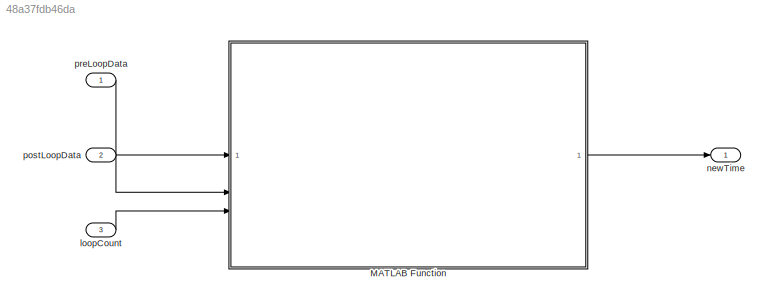
MODEL slx_48a37fdb46da
KIND model
CONFIG AbsTol = auto
CONFIG EnableMultiTasking = off
CONFIG FixedStep = auto
CONFIG MaxStep = auto
CONFIG MinStep = auto
CONFIG RelTol = 1e-3
CONFIG SampleTimeConstraint = Unconstrained
CONFIG SolverName = VariableStepAuto
CONFIG StartTime = 0.0
CONFIG StopTime = 10.0
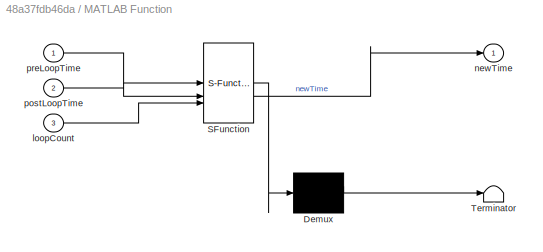
BLOCK [SubSystem] MATLAB Function
  ErrorFcn = Stateflow.Translate.translate
  PermitHierarchicalResolution = ExplicitOnly
  SFBlockType = MATLAB Function
  TreatAsAtomicUnit = on
BLOCK [Demux] MATLAB Function/ Demux 
  Outputs = 1
BLOCK [S-Function] MATLAB Function/ SFunction 
  EnableBusSupport = off
  FunctionName = sf_sfun
  PortCounts = [3 2]
  SFcnIsStateOwnerBlock = off
  SFunctionDeploymentMode = off
  Tag = Stateflow S-Function 2
BLOCK [Terminator] MATLAB Function/ Terminator 
BLOCK [Inport] MATLAB Function/loopCount
  Port = 3
BLOCK [Outport] MATLAB Function/newTime
BLOCK [Inport] MATLAB Function/postLoopTime
  Port = 2
BLOCK [Inport] MATLAB Function/preLoopTime
BLOCK [Inport] loopCount
  Port = 3
BLOCK [Outport] newTime
BLOCK [Inport] postLoopData
  Port = 2
BLOCK [Inport] preLoopData
LINE MATLAB Function:1 -> newTime:1
LINE loopCount:1 -> MATLAB Function:3
LINE postLoopData:1 -> MATLAB Function:2
LINE preLoopData:1 -> MATLAB Function:1
CHART MATLAB Function states=1 transitions=1
  STATE_LABEL 'eML_blk_kernel()'
  STATE_LABEL 'SCRIPT:\nfunction newTime = LoopCounter(preLoopTime, postLoopTime, loopCount)\n\n% Function to count time generated by loops, assuming each module time has\n% been estimated already\n\nnewTime = preLoopTime + loopCount*(postLoopTime-preLoopTime);\n'
CHART  states=0 transitions=0
